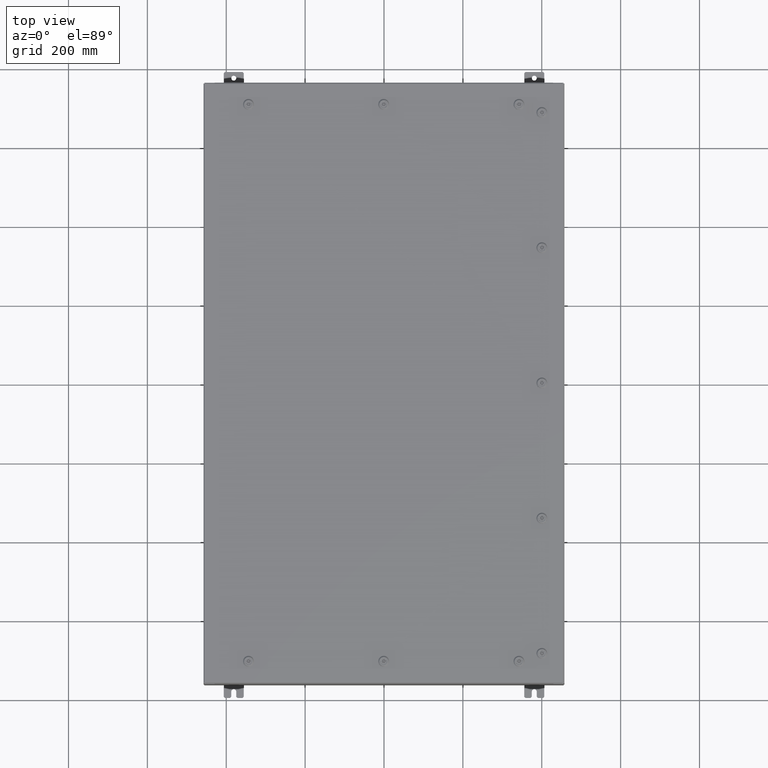
[diagram: clean part render]
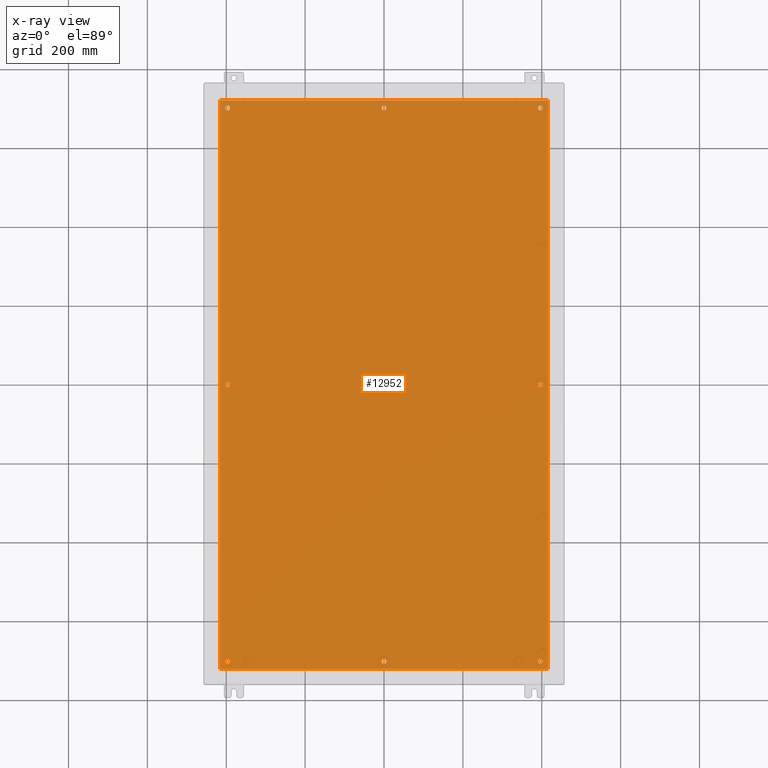
[diagram: x-ray — body ghosted, one internal face saturated and labeled with its STEP entity id]
A machine part, top view, then the same camera in x-ray: the body is ghosted and one INTERNAL B-rep face — a face not visible from any outside direction — is saturated and labeled: STEP entity #12952.
In plain terms, the highlighted planar face has unit normal (0, 0, -1).
Its self-contained STEP definition (entity closure, byte-faithful):
#211 = CARTESIAN_POINT ( 'NONE',  ( -15.62500000000001100, 27.62500000000000000, -0.1039999999999999800 ) ) ;
#274 = DIRECTION ( 'NONE',  ( -0.0000000000000000000, -0.0000000000000000000, 1.000000000000000000 ) ) ;
#302 = CARTESIAN_POINT ( 'NONE',  ( -16.50000000000000000, -28.38300000000000600, -0.1040000000000009400 ) ) ;
#916 = ORIENTED_EDGE ( 'NONE', *, *, #47018, .T. ) ;
#1035 = VERTEX_POINT ( 'NONE', #59485 ) ;
#1445 = ORIENTED_EDGE ( 'NONE', *, *, #42409, .T. ) ;
#2111 = CIRCLE ( 'NONE', #50211, 0.2500000000000008900 ) ;
#2661 = CARTESIAN_POINT ( 'NONE',  ( -16.38299999999999900, 28.38299999999998800, -0.1040000000000009100 ) ) ;
#3148 = CARTESIAN_POINT ( 'NONE',  ( 0.0000000000000000000, -27.62500000000000000, -0.1039999999999999800 ) ) ;
#4732 = FACE_BOUND ( 'NONE', #41171, .T. ) ;
#4955 = VECTOR ( 'NONE', #29414, 39.37007874015748100 ) ;
#5068 = CIRCLE ( 'NONE', #66366, 0.2500000000000008900 ) ;
#5306 = DIRECTION ( 'NONE',  ( -1.000000000000000000, 0.0000000000000000000, 0.0000000000000000000 ) ) ;
#5662 = DIRECTION ( 'NONE',  ( -1.000000000000000000, 0.0000000000000000000, 0.0000000000000000000 ) ) ;
#5823 = ORIENTED_EDGE ( 'NONE', *, *, #47063, .T. ) ;
#8457 = CIRCLE ( 'NONE', #60037, 0.2499999999999998600 ) ;
#8577 = DIRECTION ( 'NONE',  ( -1.000000000000000000, 0.0000000000000000000, 0.0000000000000000000 ) ) ;
#8809 = DIRECTION ( 'NONE',  ( -0.0000000000000000000, -0.0000000000000000000, 1.000000000000000000 ) ) ;
#9530 = AXIS2_PLACEMENT_3D ( 'NONE', #62945, #30976, #68248 ) ;
#9587 = CIRCLE ( 'NONE', #44430, 0.2499999999999987000 ) ;
#9903 = ORIENTED_EDGE ( 'NONE', *, *, #39813, .T. ) ;
#10043 = CARTESIAN_POINT ( 'NONE',  ( 15.37500000000000900, 27.62500000000000000, -0.1039999999999999800 ) ) ;
#10089 = CARTESIAN_POINT ( 'NONE',  ( 16.38299999999999900, -28.38300000000000600, -0.1040000000000009100 ) ) ;
#10391 = ORIENTED_EDGE ( 'NONE', *, *, #19319, .F. ) ;
#11223 = CARTESIAN_POINT ( 'NONE',  ( -16.38299999999999900, -28.38300000000000600, -0.1040000000000009400 ) ) ;
#11808 = CIRCLE ( 'NONE', #12715, 0.2499999999999987000 ) ;
#12043 = VERTEX_POINT ( 'NONE', #39577 ) ;
#12117 = DIRECTION ( 'NONE',  ( -0.0000000000000000000, -0.0000000000000000000, 1.000000000000000000 ) ) ;
#12552 = CARTESIAN_POINT ( 'NONE',  ( 15.37500000000000900, -27.62500000000000000, -0.1039999999999999800 ) ) ;
#12715 = AXIS2_PLACEMENT_3D ( 'NONE', #69260, #37428, #5306 ) ;
#12952 = ADVANCED_FACE ( 'NONE', ( #61599, #20671, #18998, #4732, #33232, #59942, #45810, #31547, #17330 ), #59047, .T. ) ;
#12976 = CARTESIAN_POINT ( 'NONE',  ( 15.37500000000000500, 3.027752532102206500E-015, -0.1039999999999999800 ) ) ;
#13380 = EDGE_LOOP ( 'NONE', ( #34553, #26352 ) ) ;
#14138 = CARTESIAN_POINT ( 'NONE',  ( 15.87500000000000700, -27.62500000000000000, -0.1039999999999999800 ) ) ;
#14223 = VERTEX_POINT ( 'NONE', #10043 ) ;
#15254 = AXIS2_PLACEMENT_3D ( 'NONE', #47558, #15526, #52919 ) ;
#15486 = VERTEX_POINT ( 'NONE', #49174 ) ;
#15526 = DIRECTION ( 'NONE',  ( -0.0000000000000000000, -0.0000000000000000000, 1.000000000000000000 ) ) ;
#15565 = VERTEX_POINT ( 'NONE', #17592 ) ;
#15655 = EDGE_CURVE ( 'NONE', #68537, #15486, #9587, .T. ) ;
#15703 = EDGE_LOOP ( 'NONE', ( #45686, #44883 ) ) ;
#16155 = CIRCLE ( 'NONE', #40447, 0.2500000000000011700 ) ;
#16175 = EDGE_LOOP ( 'NONE', ( #18818, #9903 ) ) ;
#16261 = AXIS2_PLACEMENT_3D ( 'NONE', #26604, #63928, #31971 ) ;
#16339 = CARTESIAN_POINT ( 'NONE',  ( 15.87500000000000700, 2.997136362123522700E-015, -0.1039999999999999800 ) ) ;
#16470 = CARTESIAN_POINT ( 'NONE',  ( 15.87500000000000700, 27.62500000000000000, -0.1039999999999999800 ) ) ;
#16826 = DIRECTION ( 'NONE',  ( -0.0000000000000000000, -0.0000000000000000000, 1.000000000000000000 ) ) ;
#16848 = VERTEX_POINT ( 'NONE', #16339 ) ;
#16863 = VECTOR ( 'NONE', #67650, 39.37007874015748100 ) ;
#17276 = CARTESIAN_POINT ( 'NONE',  ( 15.62500000000000500, 2.997136362123522700E-015, -0.1039999999999999800 ) ) ;
#17330 = FACE_OUTER_BOUND ( 'NONE', #60656, .T. ) ;
#17592 = CARTESIAN_POINT ( 'NONE',  ( -15.87500000000001100, 27.62500000000000000, -0.1039999999999999800 ) ) ;
#17701 = ORIENTED_EDGE ( 'NONE', *, *, #59733, .F. ) ;
#17864 = AXIS2_PLACEMENT_3D ( 'NONE', #32199, #64369, #32429 ) ;
#17869 = AXIS2_PLACEMENT_3D ( 'NONE', #18495, #55858, #23855 ) ;
#18495 = CARTESIAN_POINT ( 'NONE',  ( 15.62500000000000900, -27.62500000000000000, -0.1039999999999999800 ) ) ;
#18511 = VECTOR ( 'NONE', #38335, 39.37007874015748100 ) ;
#18704 = VERTEX_POINT ( 'NONE', #52913 ) ;
#18818 = ORIENTED_EDGE ( 'NONE', *, *, #19657, .T. ) ;
#18879 = ORIENTED_EDGE ( 'NONE', *, *, #58541, .T. ) ;
#18894 = AXIS2_PLACEMENT_3D ( 'NONE', #44224, #12117, #49560 ) ;
#18998 = FACE_BOUND ( 'NONE', #16175, .T. ) ;
#19319 = EDGE_CURVE ( 'NONE', #67007, #34148, #34473, .T. ) ;
#19504 = VERTEX_POINT ( 'NONE', #53066 ) ;
#19515 = EDGE_CURVE ( 'NONE', #14223, #25164, #11808, .T. ) ;
#19657 = EDGE_CURVE ( 'NONE', #16848, #31065, #5068, .T. ) ;
#19975 = DIRECTION ( 'NONE',  ( -0.0000000000000000000, -0.0000000000000000000, 1.000000000000000000 ) ) ;
#20671 = FACE_BOUND ( 'NONE', #53524, .T. ) ;
#22221 = VERTEX_POINT ( 'NONE', #10089 ) ;
#22446 = CIRCLE ( 'NONE', #49826, 0.2499999999999987000 ) ;
#22550 = DIRECTION ( 'NONE',  ( -0.0000000000000000000, -0.0000000000000000000, 1.000000000000000000 ) ) ;
#22629 = DIRECTION ( 'NONE',  ( -1.000000000000000000, 0.0000000000000000000, 0.0000000000000000000 ) ) ;
#22636 = CIRCLE ( 'NONE', #23833, 0.2500000000000008900 ) ;
#22852 = CARTESIAN_POINT ( 'NONE',  ( 16.38299999999999900, -28.38300000000000600, -0.1040000000000009100 ) ) ;
#23685 = VERTEX_POINT ( 'NONE', #11223 ) ;
#23833 = AXIS2_PLACEMENT_3D ( 'NONE', #32430, #274, #37842 ) ;
#23855 = DIRECTION ( 'NONE',  ( -1.000000000000000000, 0.0000000000000000000, 0.0000000000000000000 ) ) ;
#24425 = CIRCLE ( 'NONE', #15254, 0.2500000000000008900 ) ;
#24606 = CARTESIAN_POINT ( 'NONE',  ( 0.2500000000000011700, -27.62500000000000000, -0.1039999999999999800 ) ) ;
#25164 = VERTEX_POINT ( 'NONE', #16470 ) ;
#25522 = ORIENTED_EDGE ( 'NONE', *, *, #46701, .T. ) ;
#26222 = CIRCLE ( 'NONE', #18894, 0.2499999999999987000 ) ;
#26352 = ORIENTED_EDGE ( 'NONE', *, *, #32878, .T. ) ;
#26444 = LINE ( 'NONE', #22852, #53198 ) ;
#26604 = CARTESIAN_POINT ( 'NONE',  ( 0.0000000000000000000, 27.62500000000000000, -0.1039999999999999800 ) ) ;
#26846 = EDGE_LOOP ( 'NONE', ( #5823, #916 ) ) ;
#26973 = ORIENTED_EDGE ( 'NONE', *, *, #19515, .T. ) ;
#27017 = CIRCLE ( 'NONE', #58279, 0.2500000000000011700 ) ;
#27770 = DIRECTION ( 'NONE',  ( -0.0000000000000000000, -0.0000000000000000000, 1.000000000000000000 ) ) ;
#28503 = CIRCLE ( 'NONE', #9530, 0.2500000000000008900 ) ;
#28761 = EDGE_CURVE ( 'NONE', #15486, #68537, #22446, .T. ) ;
#28941 = ORIENTED_EDGE ( 'NONE', *, *, #49851, .T. ) ;
#29265 = DIRECTION ( 'NONE',  ( -0.0000000000000000000, -0.0000000000000000000, 1.000000000000000000 ) ) ;
#29414 = DIRECTION ( 'NONE',  ( 0.0000000000000000000, -1.000000000000000000, 0.0000000000000000000 ) ) ;
#30365 = ORIENTED_EDGE ( 'NONE', *, *, #49283, .F. ) ;
#30976 = DIRECTION ( 'NONE',  ( -0.0000000000000000000, -0.0000000000000000000, 1.000000000000000000 ) ) ;
#31041 = ORIENTED_EDGE ( 'NONE', *, *, #34996, .T. ) ;
#31065 = VERTEX_POINT ( 'NONE', #12976 ) ;
#31547 = FACE_BOUND ( 'NONE', #13380, .T. ) ;
#31924 = EDGE_CURVE ( 'NONE', #43609, #15565, #59130, .T. ) ;
#31971 = DIRECTION ( 'NONE',  ( -1.000000000000000000, 0.0000000000000000000, 0.0000000000000000000 ) ) ;
#32199 = CARTESIAN_POINT ( 'NONE',  ( 0.0000000000000000000, 0.0000000000000000000, -0.1039999999999999800 ) ) ;
#32429 = DIRECTION ( 'NONE',  ( -1.000000000000000000, 0.0000000000000000000, -0.0000000000000000000 ) ) ;
#32430 = CARTESIAN_POINT ( 'NONE',  ( -15.62500000000000500, -8.298848852119578500E-016, -0.1039999999999999800 ) ) ;
#32878 = EDGE_CURVE ( 'NONE', #15565, #43609, #2111, .T. ) ;
#33232 = FACE_BOUND ( 'NONE', #15703, .T. ) ;
#33511 = EDGE_CURVE ( 'NONE', #22221, #67007, #26444, .T. ) ;
#34148 = VERTEX_POINT ( 'NONE', #55083 ) ;
#34473 = LINE ( 'NONE', #51660, #16863 ) ;
#34553 = ORIENTED_EDGE ( 'NONE', *, *, #31924, .T. ) ;
#34996 = EDGE_CURVE ( 'NONE', #25164, #14223, #64714, .T. ) ;
#37428 = DIRECTION ( 'NONE',  ( -0.0000000000000000000, -0.0000000000000000000, 1.000000000000000000 ) ) ;
#37777 = DIRECTION ( 'NONE',  ( -0.0000000000000000000, -0.0000000000000000000, 1.000000000000000000 ) ) ;
#37842 = DIRECTION ( 'NONE',  ( -1.000000000000000000, 0.0000000000000000000, 0.0000000000000000000 ) ) ;
#38240 = EDGE_LOOP ( 'NONE', ( #31041, #26973 ) ) ;
#38335 = DIRECTION ( 'NONE',  ( 1.000000000000000000, -0.0000000000000000000, -0.0000000000000000000 ) ) ;
#39577 = CARTESIAN_POINT ( 'NONE',  ( -0.2500000000000011700, -27.62500000000000000, -0.1039999999999999800 ) ) ;
#39637 = VERTEX_POINT ( 'NONE', #12552 ) ;
#39813 = EDGE_CURVE ( 'NONE', #31065, #16848, #24425, .T. ) ;
#40447 = AXIS2_PLACEMENT_3D ( 'NONE', #3148, #40703, #8577 ) ;
#40703 = DIRECTION ( 'NONE',  ( -0.0000000000000000000, -0.0000000000000000000, 1.000000000000000000 ) ) ;
#40762 = CIRCLE ( 'NONE', #17869, 0.2499999999999987000 ) ;
#40936 = CARTESIAN_POINT ( 'NONE',  ( 0.0000000000000000000, -27.62500000000000000, -0.1039999999999999800 ) ) ;
#41171 = EDGE_LOOP ( 'NONE', ( #28941, #18879 ) ) ;
#42169 = AXIS2_PLACEMENT_3D ( 'NONE', #211, #37777, #5662 ) ;
#42409 = EDGE_CURVE ( 'NONE', #59034, #39637, #40762, .T. ) ;
#42755 = ORIENTED_EDGE ( 'NONE', *, *, #33511, .F. ) ;
#43354 = ORIENTED_EDGE ( 'NONE', *, *, #59946, .T. ) ;
#43609 = VERTEX_POINT ( 'NONE', #54305 ) ;
#43812 = CARTESIAN_POINT ( 'NONE',  ( 16.38299999999999900, 28.38299999999998800, -0.1040000000000009100 ) ) ;
#44224 = CARTESIAN_POINT ( 'NONE',  ( 15.62500000000000900, -27.62500000000000000, -0.1039999999999999800 ) ) ;
#44430 = AXIS2_PLACEMENT_3D ( 'NONE', #61227, #29265, #66525 ) ;
#44883 = ORIENTED_EDGE ( 'NONE', *, *, #28761, .T. ) ;
#45307 = LINE ( 'NONE', #302, #18511 ) ;
#45686 = ORIENTED_EDGE ( 'NONE', *, *, #15655, .T. ) ;
#45810 = FACE_BOUND ( 'NONE', #38240, .T. ) ;
#46030 = CIRCLE ( 'NONE', #16261, 0.2499999999999998600 ) ;
#46271 = DIRECTION ( 'NONE',  ( -1.000000000000000000, 0.0000000000000000000, 0.0000000000000000000 ) ) ;
#46701 = EDGE_CURVE ( 'NONE', #39637, #59034, #26222, .T. ) ;
#47018 = EDGE_CURVE ( 'NONE', #12043, #51657, #16155, .T. ) ;
#47063 = EDGE_CURVE ( 'NONE', #51657, #12043, #27017, .T. ) ;
#47558 = CARTESIAN_POINT ( 'NONE',  ( 15.62500000000000500, 2.997136362123522700E-015, -0.1039999999999999800 ) ) ;
#47689 = LINE ( 'NONE', #2661, #4955 ) ;
#48870 = CARTESIAN_POINT ( 'NONE',  ( -15.62500000000000900, -27.62500000000000000, -0.1039999999999999800 ) ) ;
#49143 = CARTESIAN_POINT ( 'NONE',  ( -15.37500000000000900, -27.62500000000000000, -0.1039999999999999800 ) ) ;
#49174 = CARTESIAN_POINT ( 'NONE',  ( -15.87500000000000700, -27.62500000000000000, -0.1039999999999999800 ) ) ;
#49283 = EDGE_CURVE ( 'NONE', #23685, #22221, #45307, .T. ) ;
#49560 = DIRECTION ( 'NONE',  ( -1.000000000000000000, 0.0000000000000000000, 0.0000000000000000000 ) ) ;
#49826 = AXIS2_PLACEMENT_3D ( 'NONE', #48870, #16826, #54209 ) ;
#49851 = EDGE_CURVE ( 'NONE', #1035, #51163, #28503, .T. ) ;
#50211 = AXIS2_PLACEMENT_3D ( 'NONE', #59742, #27770, #65063 ) ;
#51163 = VERTEX_POINT ( 'NONE', #57010 ) ;
#51657 = VERTEX_POINT ( 'NONE', #24606 ) ;
#51660 = CARTESIAN_POINT ( 'NONE',  ( 16.50000000000000000, 28.38299999999999600, -0.1040000000000009400 ) ) ;
#52016 = CARTESIAN_POINT ( 'NONE',  ( 15.62500000000000900, 27.62500000000000000, -0.1039999999999999800 ) ) ;
#52913 = CARTESIAN_POINT ( 'NONE',  ( -0.2499999999999998600, 27.62500000000000000, -0.1039999999999999800 ) ) ;
#52919 = DIRECTION ( 'NONE',  ( -1.000000000000000000, 0.0000000000000000000, 0.0000000000000000000 ) ) ;
#53066 = CARTESIAN_POINT ( 'NONE',  ( 0.2499999999999998600, 27.62500000000000000, -0.1039999999999999800 ) ) ;
#53198 = VECTOR ( 'NONE', #54848, 39.37007874015748100 ) ;
#53524 = EDGE_LOOP ( 'NONE', ( #58150, #43354 ) ) ;
#54209 = DIRECTION ( 'NONE',  ( -1.000000000000000000, 0.0000000000000000000, 0.0000000000000000000 ) ) ;
#54305 = CARTESIAN_POINT ( 'NONE',  ( -15.37500000000000900, 27.62500000000000000, -0.1039999999999999800 ) ) ;
#54558 = CARTESIAN_POINT ( 'NONE',  ( 0.0000000000000000000, 27.62500000000000000, -0.1039999999999999800 ) ) ;
#54636 = DIRECTION ( 'NONE',  ( -0.0000000000000000000, -0.0000000000000000000, 1.000000000000000000 ) ) ;
#54848 = DIRECTION ( 'NONE',  ( 0.0000000000000000000, 1.000000000000000000, 0.0000000000000000000 ) ) ;
#55083 = CARTESIAN_POINT ( 'NONE',  ( -16.38299999999999900, 28.38299999999998800, -0.1040000000000009100 ) ) ;
#55858 = DIRECTION ( 'NONE',  ( -0.0000000000000000000, -0.0000000000000000000, 1.000000000000000000 ) ) ;
#57010 = CARTESIAN_POINT ( 'NONE',  ( -15.87500000000000700, -7.992687152332741600E-016, -0.1039999999999999800 ) ) ;
#57376 = DIRECTION ( 'NONE',  ( -1.000000000000000000, 0.0000000000000000000, 0.0000000000000000000 ) ) ;
#57657 = EDGE_CURVE ( 'NONE', #19504, #18704, #8457, .T. ) ;
#58150 = ORIENTED_EDGE ( 'NONE', *, *, #57657, .T. ) ;
#58279 = AXIS2_PLACEMENT_3D ( 'NONE', #40936, #8809, #46271 ) ;
#58541 = EDGE_CURVE ( 'NONE', #51163, #1035, #22636, .T. ) ;
#59034 = VERTEX_POINT ( 'NONE', #14138 ) ;
#59047 = PLANE ( 'NONE',  #17864 ) ;
#59130 = CIRCLE ( 'NONE', #42169, 0.2500000000000008900 ) ;
#59485 = CARTESIAN_POINT ( 'NONE',  ( -15.37500000000000500, -8.298848852119578500E-016, -0.1039999999999999800 ) ) ;
#59723 = EDGE_LOOP ( 'NONE', ( #1445, #25522 ) ) ;
#59733 = EDGE_CURVE ( 'NONE', #34148, #23685, #47689, .T. ) ;
#59742 = CARTESIAN_POINT ( 'NONE',  ( -15.62500000000001100, 27.62500000000000000, -0.1039999999999999800 ) ) ;
#59914 = DIRECTION ( 'NONE',  ( -1.000000000000000000, 0.0000000000000000000, 0.0000000000000000000 ) ) ;
#59942 = FACE_BOUND ( 'NONE', #59723, .T. ) ;
#59946 = EDGE_CURVE ( 'NONE', #18704, #19504, #46030, .T. ) ;
#60037 = AXIS2_PLACEMENT_3D ( 'NONE', #54558, #22550, #59914 ) ;
#60656 = EDGE_LOOP ( 'NONE', ( #30365, #17701, #10391, #42755 ) ) ;
#61227 = CARTESIAN_POINT ( 'NONE',  ( -15.62500000000000900, -27.62500000000000000, -0.1039999999999999800 ) ) ;
#61599 = FACE_BOUND ( 'NONE', #26846, .T. ) ;
#62945 = CARTESIAN_POINT ( 'NONE',  ( -15.62500000000000500, -8.298848852119578500E-016, -0.1039999999999999800 ) ) ;
#63928 = DIRECTION ( 'NONE',  ( -0.0000000000000000000, -0.0000000000000000000, 1.000000000000000000 ) ) ;
#64369 = DIRECTION ( 'NONE',  ( 0.0000000000000000000, 0.0000000000000000000, -1.000000000000000000 ) ) ;
#64714 = CIRCLE ( 'NONE', #67170, 0.2499999999999987000 ) ;
#65063 = DIRECTION ( 'NONE',  ( -1.000000000000000000, 0.0000000000000000000, 0.0000000000000000000 ) ) ;
#66366 = AXIS2_PLACEMENT_3D ( 'NONE', #17276, #54636, #22629 ) ;
#66525 = DIRECTION ( 'NONE',  ( -1.000000000000000000, 0.0000000000000000000, 0.0000000000000000000 ) ) ;
#67007 = VERTEX_POINT ( 'NONE', #43812 ) ;
#67170 = AXIS2_PLACEMENT_3D ( 'NONE', #52016, #19975, #57376 ) ;
#67650 = DIRECTION ( 'NONE',  ( -1.000000000000000000, -0.0000000000000000000, -0.0000000000000000000 ) ) ;
#68248 = DIRECTION ( 'NONE',  ( -1.000000000000000000, 0.0000000000000000000, 0.0000000000000000000 ) ) ;
#68537 = VERTEX_POINT ( 'NONE', #49143 ) ;
#69260 = CARTESIAN_POINT ( 'NONE',  ( 15.62500000000000900, 27.62500000000000000, -0.1039999999999999800 ) ) ;